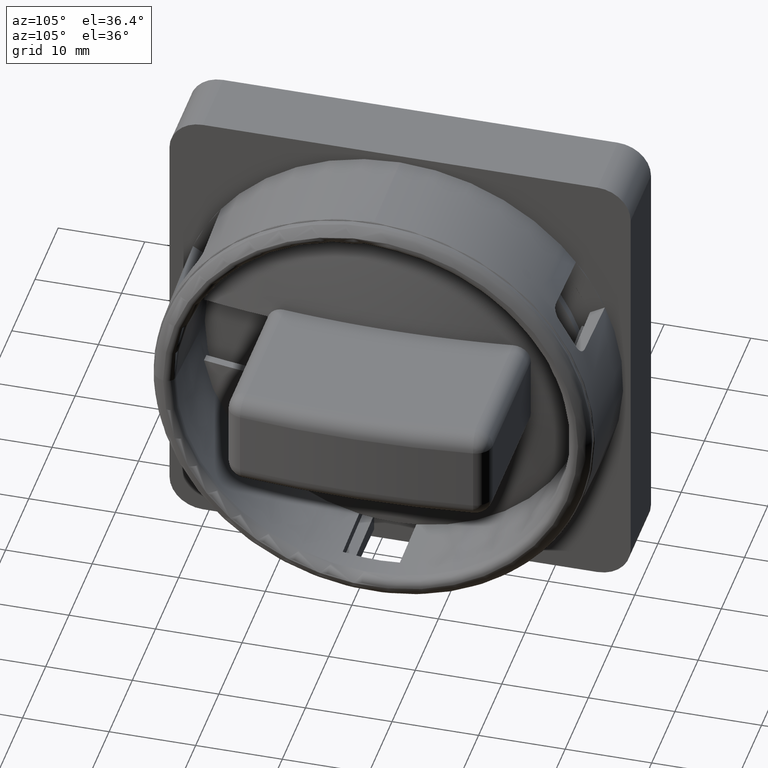
[diagram: clean part render]
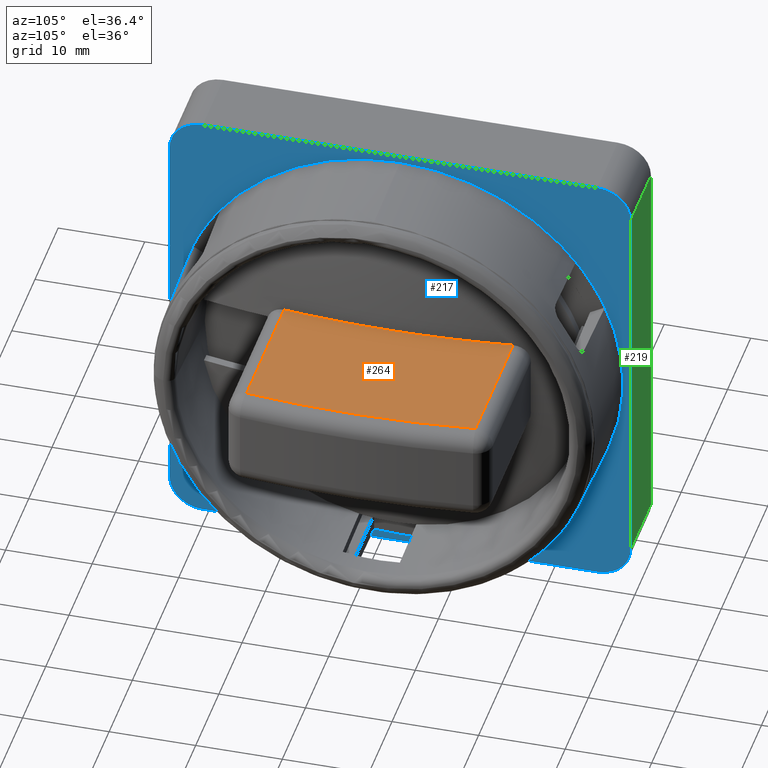
[diagram: same view with three faces highlighted in distinct colors, each labeled with its STEP entity id]
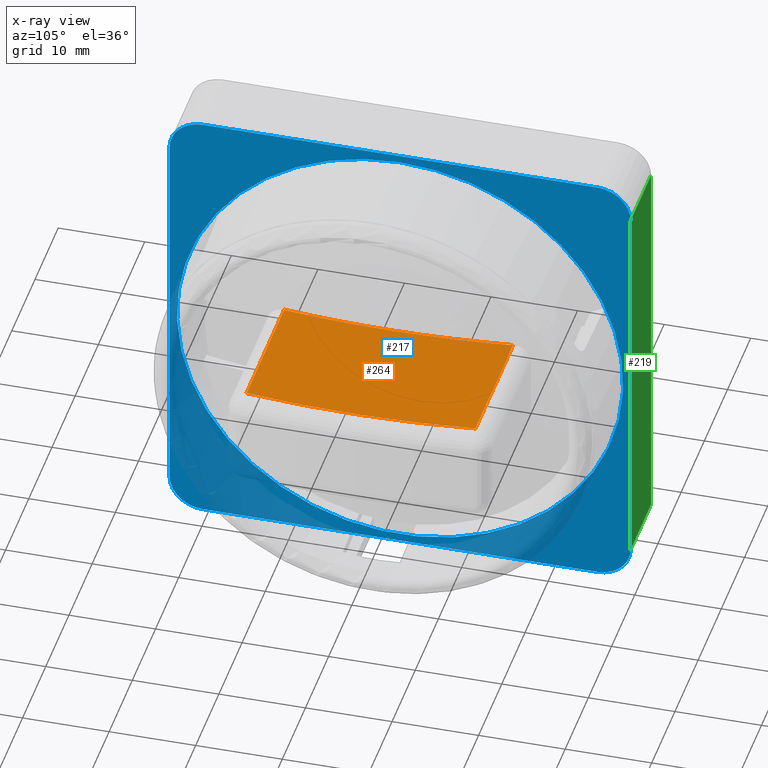
[diagram: x-ray of the same camera — body ghosted, the three highlighted faces saturated]
A machine part, auxiliary view with three faces highlighted in distinct colors.
The next image is the same camera in x-ray (body ghosted, the three faces saturated) — at least one of them is partly hidden behind the body in this view.
Their STEP definitions:

[orange] entity #264 — the highlighted planar face has unit normal (-0, 0, 1).
#119=FACE_OUTER_BOUND('',#457,.T.);
#264=ADVANCED_FACE('',(#119),#327,.T.);
#327=PLANE('',#1702);
#457=EDGE_LOOP('',(#912,#913,#914,#915));
#559=CIRCLE('',#1700,116.865906063317);
#560=CIRCLE('',#1701,114.);
#912=ORIENTED_EDGE('',*,*,#1376,.F.);
#913=ORIENTED_EDGE('',*,*,#1377,.T.);
#914=ORIENTED_EDGE('',*,*,#1378,.T.);
#915=ORIENTED_EDGE('',*,*,#1379,.T.);
#1170=VERTEX_POINT('',#2964);
#1171=VERTEX_POINT('',#2965);
#1172=VERTEX_POINT('',#2967);
#1173=VERTEX_POINT('',#2969);
#1376=EDGE_CURVE('',#1170,#1171,#559,.T.);
#1377=EDGE_CURVE('',#1170,#1172,#1495,.T.);
#1378=EDGE_CURVE('',#1172,#1173,#560,.T.);
#1379=EDGE_CURVE('',#1173,#1171,#1496,.T.);
#1495=LINE('',#2966,#1578);
#1496=LINE('',#2970,#1579);
#1578=VECTOR('',#2058,1.);
#1579=VECTOR('',#2061,1.);
#1700=AXIS2_PLACEMENT_3D('',#2963,#2056,#2057);
#1701=AXIS2_PLACEMENT_3D('',#2968,#2059,#2060);
#1702=AXIS2_PLACEMENT_3D('',#2971,#2062,#2063);
#2056=DIRECTION('',(-1.02954039984964E-007,2.36455399890487E-009,0.999999999999995));
#2057=DIRECTION('',(8.31535600285261E-010,-1.,2.36455412137384E-009));
#2058=DIRECTION('',(0.999999999999995,8.31535836104064E-010,1.02954039982998E-007));
#2059=DIRECTION('',(-1.02954039984964E-007,2.36455399890487E-009,0.999999999999995));
#2060=DIRECTION('',(8.31535589653881E-010,-1.,2.36455409346149E-009));
#2061=DIRECTION('',(-0.999999999999995,-8.31535836104064E-010,-1.02954039982998E-007));
#2062=DIRECTION('',(-1.02954039984964E-007,2.36455399890487E-009,0.999999999999995));
#2063=DIRECTION('',(-8.31535590384291E-010,1.,-2.36455408031411E-009));
#2963=CARTESIAN_POINT('',(-34.0075581102724,32.4954159979139,66.946045681203));
#2964=CARTESIAN_POINT('',(82.1986379482696,20.0954160945435,66.9460576744208));
#2965=CARTESIAN_POINT('',(82.0167496760639,46.4954160943922,66.9460575932705));
#2966=CARTESIAN_POINT('',(108.404963968227,20.095416116335,66.946060372468));
#2967=CARTESIAN_POINT('',(98.4285713940409,20.0954161080392,66.9460593453581));
#2968=CARTESIAN_POINT('',(-14.8950360420835,32.4954160138066,66.9460476489144));
#2969=CARTESIAN_POINT('',(98.242048936122,46.4954161078842,66.9460592637306));
#2970=CARTESIAN_POINT('',(108.404963946274,46.495416116335,66.9460603100437));
#2971=CARTESIAN_POINT('',(108.40496396989,18.095416116335,66.9460603771971));

[blue] entity #217 — the highlighted planar face has unit normal (-1, -0, -0).
#217=ADVANCED_FACE('',(#357,#358),#300,.F.);
#300=PLANE('',#1612);
#357=FACE_BOUND('',#404,.T.);
#358=FACE_BOUND('',#405,.T.);
#404=EDGE_LOOP('',(#649,#650,#651,#652,#653,#654,#655,#656));
#405=EDGE_LOOP('',(#657));
#509=CIRCLE('',#1603,25.7759547459881);
#514=CIRCLE('',#1608,3.84000000000001);
#515=CIRCLE('',#1609,3.84);
#516=CIRCLE('',#1610,3.84);
#517=CIRCLE('',#1611,3.83999999999999);
#649=ORIENTED_EDGE('',*,*,#1253,.F.);
#650=ORIENTED_EDGE('',*,*,#1254,.F.);
#651=ORIENTED_EDGE('',*,*,#1255,.F.);
#652=ORIENTED_EDGE('',*,*,#1256,.F.);
#653=ORIENTED_EDGE('',*,*,#1257,.F.);
#654=ORIENTED_EDGE('',*,*,#1258,.F.);
#655=ORIENTED_EDGE('',*,*,#1259,.F.);
#656=ORIENTED_EDGE('',*,*,#1260,.F.);
#657=ORIENTED_EDGE('',*,*,#1237,.T.);
#1086=VERTEX_POINT('',#2503);
#1102=VERTEX_POINT('',#2655);
#1103=VERTEX_POINT('',#2656);
#1104=VERTEX_POINT('',#2658);
#1105=VERTEX_POINT('',#2660);
#1106=VERTEX_POINT('',#2662);
#1107=VERTEX_POINT('',#2664);
#1108=VERTEX_POINT('',#2666);
#1109=VERTEX_POINT('',#2668);
#1237=EDGE_CURVE('',#1086,#1086,#509,.T.);
#1253=EDGE_CURVE('',#1102,#1103,#514,.T.);
#1254=EDGE_CURVE('',#1104,#1102,#1434,.T.);
#1255=EDGE_CURVE('',#1105,#1104,#515,.T.);
#1256=EDGE_CURVE('',#1106,#1105,#1435,.T.);
#1257=EDGE_CURVE('',#1107,#1106,#516,.T.);
#1258=EDGE_CURVE('',#1108,#1107,#1436,.T.);
#1259=EDGE_CURVE('',#1109,#1108,#517,.T.);
#1260=EDGE_CURVE('',#1103,#1109,#1437,.T.);
#1434=LINE('',#2657,#1517);
#1435=LINE('',#2661,#1518);
#1436=LINE('',#2665,#1519);
#1437=LINE('',#2669,#1520);
#1517=VECTOR('',#1813,1.);
#1518=VECTOR('',#1816,1.);
#1519=VECTOR('',#1819,1.);
#1520=VECTOR('',#1822,1.);
#1603=AXIS2_PLACEMENT_3D('',#2502,#1797,#1798);
#1608=AXIS2_PLACEMENT_3D('',#2654,#1811,#1812);
#1609=AXIS2_PLACEMENT_3D('',#2659,#1814,#1815);
#1610=AXIS2_PLACEMENT_3D('',#2663,#1817,#1818);
#1611=AXIS2_PLACEMENT_3D('',#2667,#1820,#1821);
#1612=AXIS2_PLACEMENT_3D('',#2670,#1823,#1824);
#1797=DIRECTION('',(-0.999999999999995,-8.31535701837681E-010,-1.02954039982999E-007));
#1798=DIRECTION('',(-1.02954039895102E-007,2.36455365822698E-009,0.999999999999995));
#1811=DIRECTION('',(-0.999999999999995,-8.31535701837681E-010,-1.02954039982999E-007));
#1812=DIRECTION('',(-1.02954038523617E-007,2.36455368450803E-009,0.999999999999996));
#1813=DIRECTION('',(-1.02954039984965E-007,2.36455310491361E-009,0.999999999999995));
#1814=DIRECTION('',(-0.999999999999995,-8.31535701837681E-010,-1.02954039982999E-007));
#1815=DIRECTION('',(-1.02954038523617E-007,2.36455368450803E-009,0.999999999999995));
#1816=DIRECTION('',(8.31535458397319E-010,-1.,2.36455379919846E-009));
#1817=DIRECTION('',(-0.999999999999995,-8.31535701837681E-010,-1.02954039982999E-007));
#1818=DIRECTION('',(-1.02954038523617E-007,2.36455458800984E-009,0.999999999999995));
#1819=DIRECTION('',(1.02954039984965E-007,-2.36455356141979E-009,-0.999999999999995));
#1820=DIRECTION('',(-0.999999999999995,-8.31535701837681E-010,-1.02954039982999E-007));
#1821=DIRECTION('',(-1.02954038523617E-007,2.36455458800985E-009,0.999999999999994));
#1822=DIRECTION('',(-8.31535475827175E-010,1.,-2.19525635268448E-009));
#1823=DIRECTION('',(-0.999999999999995,-8.31535701837681E-010,-1.02954039982999E-007));
#1824=DIRECTION('',(1.02954039987724E-007,-2.36455371255273E-009,-0.999999999999995));
#2502=CARTESIAN_POINT('',(78.4999874432898,32.4954160782265,61.3460572643093));
#2503=CARTESIAN_POINT('',(78.4999847895511,32.4954161391751,87.1220120102973));
#2654=CARTESIAN_POINT('',(78.4999851150181,9.69541370654686,84.1266040720901));
#2655=CARTESIAN_POINT('',(78.4999851182112,5.85541370654675,84.12660408117));
#2656=CARTESIAN_POINT('',(78.4999847196746,9.69541371562674,87.9666040720901));
#2657=CARTESIAN_POINT('',(78.4999898129154,5.8554135987232,38.5266040811701));
#2658=CARTESIAN_POINT('',(78.4999898129154,5.8554135987232,38.5266040811701));
#2659=CARTESIAN_POINT('',(78.4999898097223,9.69541359872321,38.5266040720902));
#2660=CARTESIAN_POINT('',(78.4999902050658,9.69541358964332,34.6866040720902));
#2661=CARTESIAN_POINT('',(78.4999901671478,55.2954135896432,34.6866039642666));
#2662=CARTESIAN_POINT('',(78.4999901671478,55.2954135896432,34.6866039642666));
#2663=CARTESIAN_POINT('',(78.4999897718043,55.2954135987231,38.5266039642666));
#2664=CARTESIAN_POINT('',(78.4999897686112,59.1354136268824,38.5266039559208));
#2665=CARTESIAN_POINT('',(78.499985073907,59.1354137347061,84.1266039551866));
#2666=CARTESIAN_POINT('',(78.499985073907,59.1354137347061,84.1266039551866));
#2667=CARTESIAN_POINT('',(78.4999850771001,55.2954137347061,84.1266039642664));
#2668=CARTESIAN_POINT('',(78.4999846817566,55.295413693591,87.9666039719864));
#2669=CARTESIAN_POINT('',(78.4999847196746,9.69541371562674,87.9666040720901));
#2670=CARTESIAN_POINT('',(78.4999874241861,56.3011777143335,61.3210648645112));

[green] entity #219 — the highlighted planar face has unit normal (0, -1, 0).
#79=FACE_OUTER_BOUND('',#407,.T.);
#219=ADVANCED_FACE('',(#79),#301,.F.);
#301=PLANE('',#1615);
#407=EDGE_LOOP('',(#662,#663,#664,#665));
#662=ORIENTED_EDGE('',*,*,#1262,.T.);
#663=ORIENTED_EDGE('',*,*,#1258,.T.);
#664=ORIENTED_EDGE('',*,*,#1264,.F.);
#665=ORIENTED_EDGE('',*,*,#1265,.F.);
#1107=VERTEX_POINT('',#2664);
#1108=VERTEX_POINT('',#2666);
#1111=VERTEX_POINT('',#2674);
#1112=VERTEX_POINT('',#2678);
#1258=EDGE_CURVE('',#1108,#1107,#1436,.T.);
#1262=EDGE_CURVE('',#1111,#1108,#1439,.T.);
#1264=EDGE_CURVE('',#1112,#1107,#1440,.T.);
#1265=EDGE_CURVE('',#1111,#1112,#1441,.T.);
#1436=LINE('',#2665,#1519);
#1439=LINE('',#2673,#1522);
#1440=LINE('',#2677,#1523);
#1441=LINE('',#2679,#1524);
#1519=VECTOR('',#1819,1.);
#1522=VECTOR('',#1826,1.);
#1523=VECTOR('',#1831,1.);
#1524=VECTOR('',#1832,1.);
#1615=AXIS2_PLACEMENT_3D('',#2680,#1833,#1834);
#1819=DIRECTION('',(1.02954039984965E-007,-2.36455356141979E-009,-0.999999999999995));
#1826=DIRECTION('',(0.999999999999995,8.31535701837681E-010,1.02954039982999E-007));
#1831=DIRECTION('',(0.999999999999995,8.31535701837681E-010,1.02954039982999E-007));
#1832=DIRECTION('',(1.02954039984965E-007,-2.36455356141979E-009,-0.999999999999995));
#1833=DIRECTION('',(8.31535458397334E-010,-1.,2.36455364702973E-009));
#1834=DIRECTION('',(-1.02954039987724E-007,2.36455355989706E-009,0.999999999999995));
#2664=CARTESIAN_POINT('',(78.4999897686112,59.1354136268824,38.5266039559208));
#2665=CARTESIAN_POINT('',(78.499985073907,59.1354137347061,84.1266039551866));
#2666=CARTESIAN_POINT('',(78.499985073907,59.1354137347061,84.1266039551866));
#2673=CARTESIAN_POINT('',(69.7447228000221,59.1354137274258,84.1266030537969));
#2674=CARTESIAN_POINT('',(69.7447228000221,59.1354137274258,84.1266030537969));
#2677=CARTESIAN_POINT('',(69.7447274947263,59.1354136196021,38.5266030545312));
#2678=CARTESIAN_POINT('',(69.7447274947263,59.1354136196021,38.5266030545312));
#2679=CARTESIAN_POINT('',(69.7447228000221,59.1354137274258,84.1266030537969));
#2680=CARTESIAN_POINT('',(69.7447228000221,59.1354137274258,84.1266030537969));